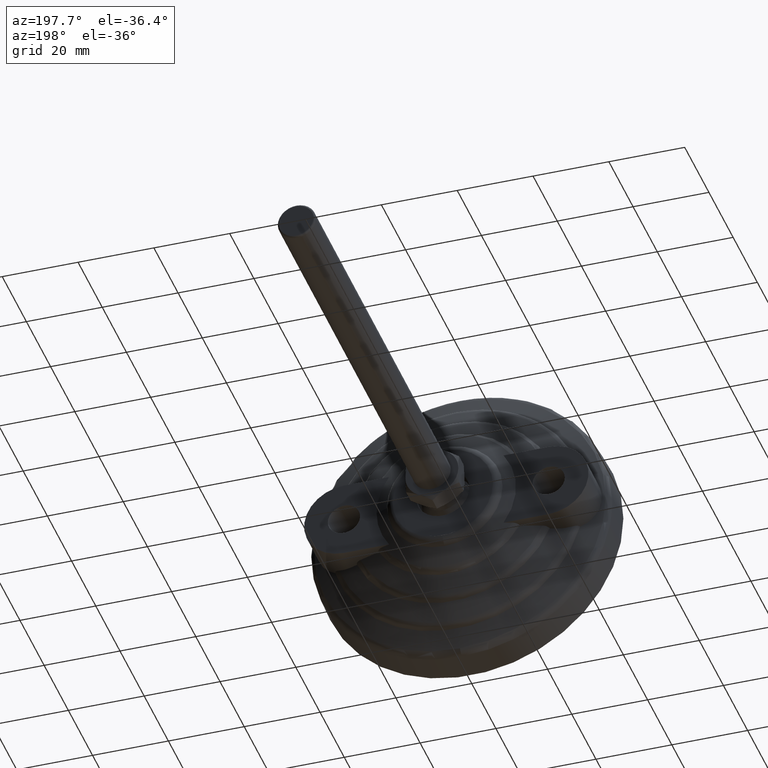
[diagram: clean part render]
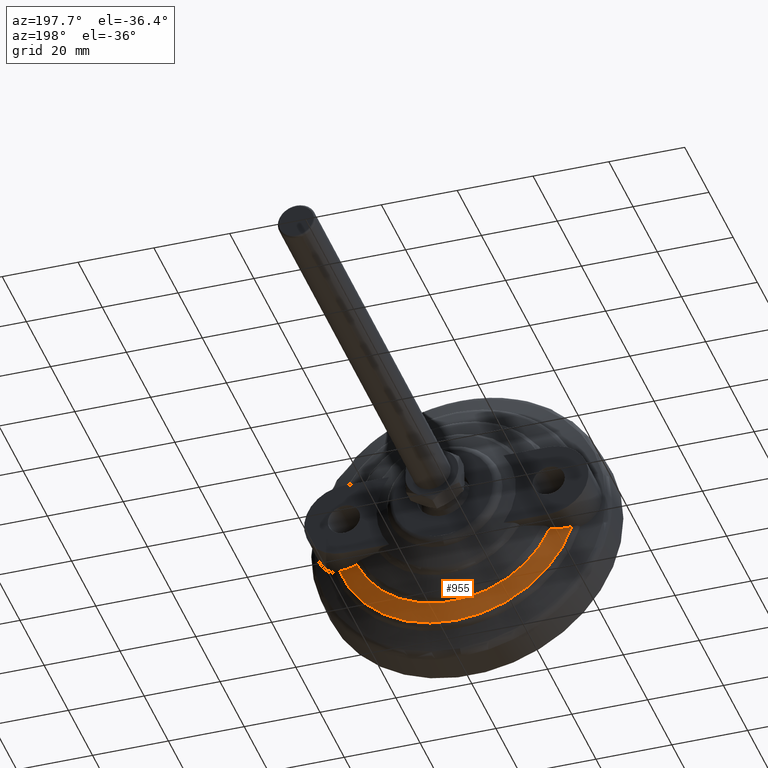
[diagram: same view with one face highlighted and labeled with its STEP entity id]
A machine part, auxiliary view. The second image highlights one B-rep face of the part: STEP entity #955.
In plain terms, the highlighted conical surface has half-angle 68.88 deg.
Its self-contained STEP definition (entity closure, byte-faithful):
#38=CONICAL_SURFACE('',#1099,29.8804665177825,1.20217691399191);
#58=(
BOUNDED_CURVE()
B_SPLINE_CURVE(2,(#1622,#1623,#1624),.UNSPECIFIED.,.F.,.F.)
B_SPLINE_CURVE_WITH_KNOTS((3,3),(0.362606543798788,0.53958314247249),
 .UNSPECIFIED.)
CURVE()
GEOMETRIC_REPRESENTATION_ITEM()
RATIONAL_B_SPLINE_CURVE((1.00159787675078,1.00118887451594,1.))
REPRESENTATION_ITEM('')
);
#66=(
BOUNDED_CURVE()
B_SPLINE_CURVE(2,(#1765,#1766,#1767),.UNSPECIFIED.,.F.,.F.)
B_SPLINE_CURVE_WITH_KNOTS((3,3),(0.,0.176976598673702),.UNSPECIFIED.)
CURVE()
GEOMETRIC_REPRESENTATION_ITEM()
RATIONAL_B_SPLINE_CURVE((1.,1.00118887451594,1.00159787675078))
REPRESENTATION_ITEM('')
);
#122=B_SPLINE_CURVE_WITH_KNOTS('',3,(#1570,#1571,#1572,#1573,#1574,#1575),
 .UNSPECIFIED.,.F.,.F.,(4,2,4),(2.8665167227233,2.96107987676726,3.25168735559793),
 .UNSPECIFIED.);
#129=B_SPLINE_CURVE_WITH_KNOTS('',3,(#1700,#1701,#1702,#1703,#1704,#1705),
 .UNSPECIFIED.,.F.,.F.,(4,2,4),(5.76722868500192,6.05783616383258,6.15239931787654),
 .UNSPECIFIED.);
#154=FACE_OUTER_BOUND('',#211,.T.);
#211=EDGE_LOOP('',(#737,#738,#739,#740,#741,#742));
#327=CIRCLE('',#1098,27.50624303865);
#328=CIRCLE('',#1100,32.254689996915);
#393=VERTEX_POINT('',#1558);
#394=VERTEX_POINT('',#1569);
#404=VERTEX_POINT('',#1610);
#405=VERTEX_POINT('',#1621);
#416=VERTEX_POINT('',#1699);
#422=VERTEX_POINT('',#1764);
#500=EDGE_CURVE('',#394,#393,#122,.T.);
#512=EDGE_CURVE('',#405,#404,#58,.T.);
#526=EDGE_CURVE('',#416,#405,#129,.T.);
#533=EDGE_CURVE('',#422,#394,#66,.T.);
#547=EDGE_CURVE('',#422,#404,#327,.T.);
#548=EDGE_CURVE('',#393,#416,#328,.T.);
#737=ORIENTED_EDGE('',*,*,#533,.T.);
#738=ORIENTED_EDGE('',*,*,#500,.T.);
#739=ORIENTED_EDGE('',*,*,#548,.T.);
#740=ORIENTED_EDGE('',*,*,#526,.T.);
#741=ORIENTED_EDGE('',*,*,#512,.T.);
#742=ORIENTED_EDGE('',*,*,#547,.F.);
#955=ADVANCED_FACE('',(#154),#38,.T.);
#1098=AXIS2_PLACEMENT_3D('',#1812,#1286,#1287);
#1099=AXIS2_PLACEMENT_3D('',#1813,#1288,#1289);
#1100=AXIS2_PLACEMENT_3D('',#1814,#1290,#1291);
#1286=DIRECTION('center_axis',(0.,1.,0.));
#1287=DIRECTION('ref_axis',(-1.,0.,0.));
#1288=DIRECTION('center_axis',(0.,-1.,0.));
#1289=DIRECTION('ref_axis',(-1.,0.,0.));
#1290=DIRECTION('center_axis',(0.,1.,0.));
#1291=DIRECTION('ref_axis',(-1.,0.,0.));
#1558=CARTESIAN_POINT('',(30.7243523480942,13.353673555576,-9.81729084764454));
#1569=CARTESIAN_POINT('',(27.,14.6225422536565,-10.5));
#1570=CARTESIAN_POINT('Ctrl Pts',(27.,14.6225422536565,-10.5));
#1571=CARTESIAN_POINT('Ctrl Pts',(27.3100625601747,14.5109163877395,-10.5));
#1572=CARTESIAN_POINT('Ctrl Pts',(27.6208747110214,14.4006946398294,-10.4862470382709));
#1573=CARTESIAN_POINT('Ctrl Pts',(28.8835374298768,13.9591533364495,-10.373863285386));
#1574=CARTESIAN_POINT('Ctrl Pts',(29.830006323037,13.6428573128391,-10.1565758673228));
#1575=CARTESIAN_POINT('Ctrl Pts',(30.7243523480942,13.353673555576,-9.81729084764453));
#1610=CARTESIAN_POINT('',(-25.4232847228929,15.187883375214,-10.5));
#1621=CARTESIAN_POINT('',(-27.,14.6225422536565,-10.5));
#1622=CARTESIAN_POINT('Ctrl Pts',(-27.,14.6225422536565,-10.5));
#1623=CARTESIAN_POINT('Ctrl Pts',(-26.1912121867038,14.9137145898182,-10.5));
#1624=CARTESIAN_POINT('Ctrl Pts',(-25.4232847228929,15.187883375214,-10.5));
#1699=CARTESIAN_POINT('',(-30.7243523480942,13.353673555576,-9.81729084764454));
#1700=CARTESIAN_POINT('Ctrl Pts',(-30.7243523480942,13.353673555576,-9.81729084764453));
#1701=CARTESIAN_POINT('Ctrl Pts',(-29.830006323037,13.6428573128391,-10.1565758673228));
#1702=CARTESIAN_POINT('Ctrl Pts',(-28.8835374298768,13.9591533364495,-10.373863285386));
#1703=CARTESIAN_POINT('Ctrl Pts',(-27.6208747110214,14.4006946398294,-10.4862470382709));
#1704=CARTESIAN_POINT('Ctrl Pts',(-27.3100625601747,14.5109163877395,-10.5));
#1705=CARTESIAN_POINT('Ctrl Pts',(-27.,14.6225422536565,-10.5));
#1764=CARTESIAN_POINT('',(25.4232847228929,15.187883375214,-10.5));
#1765=CARTESIAN_POINT('Ctrl Pts',(25.4232847228929,15.187883375214,-10.5));
#1766=CARTESIAN_POINT('Ctrl Pts',(26.1912121867038,14.9137145898182,-10.5));
#1767=CARTESIAN_POINT('Ctrl Pts',(27.,14.6225422536565,-10.5));
#1812=CARTESIAN_POINT('Origin',(0.,15.187883375214,0.));
#1813=CARTESIAN_POINT('Origin',(0.,14.270778465395,0.));
#1814=CARTESIAN_POINT('Origin',(0.,13.353673555576,0.));